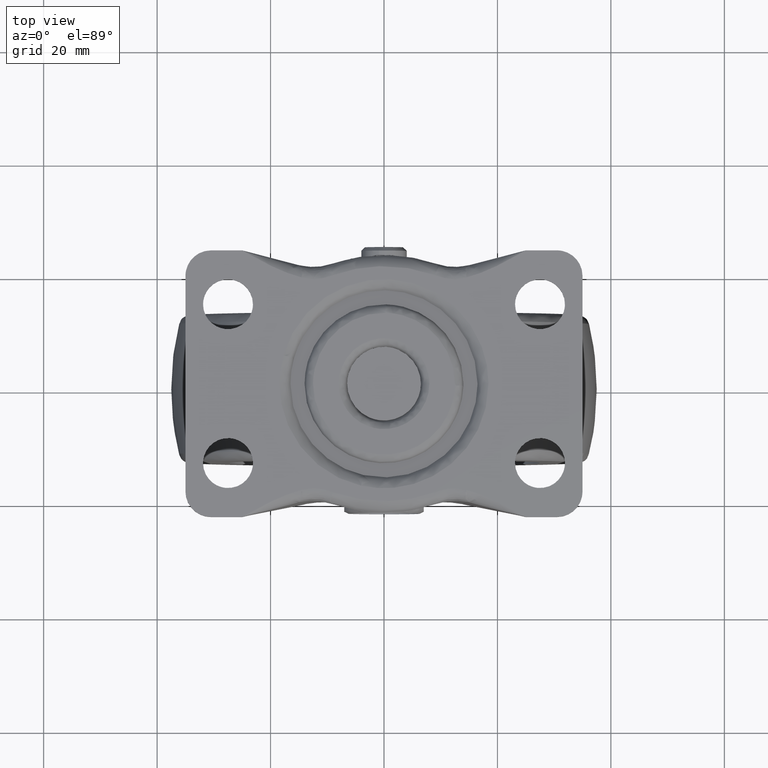
[diagram: clean part render]
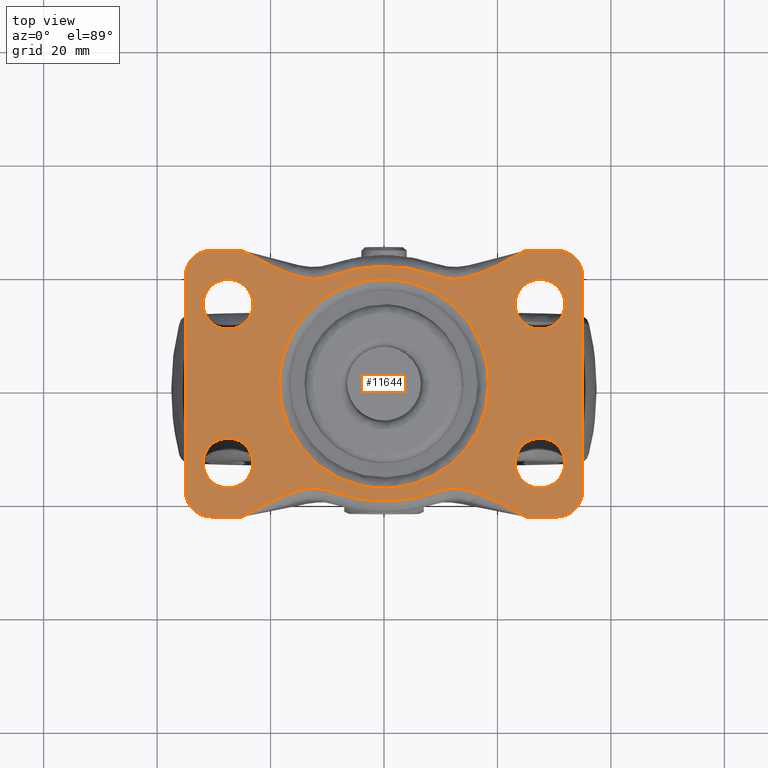
[diagram: same view with one face highlighted and labeled with its STEP entity id]
A machine part, top view. The second image highlights one B-rep face of the part: STEP entity #11644.
In plain terms, the highlighted face is a freeform B-spline surface patch.
Its self-contained STEP definition (entity closure, byte-faithful):
#2124=CARTESIAN_POINT('',(-28.019344770543889,9.630757286522787,-1.064786E-017));
#2125=VERTEX_POINT('',#2124);
#2131=CARTESIAN_POINT('',(-23.099999900000000,14.0,0.0));
#2132=VERTEX_POINT('',#2131);
#2133=CARTESIAN_POINT('',(-28.019344770543892,9.630757286522787,-1.064786E-017));
#2134=CARTESIAN_POINT('',(-27.760583164468510,9.599999900000000,0.0));
#2135=CARTESIAN_POINT('',(-27.500000000000000,9.599999900000000,0.0));
#2136=CARTESIAN_POINT('',(-23.099999900000004,9.599999900000000,0.0));
#2137=CARTESIAN_POINT('',(-23.099999900000000,14.0,0.0));
#2145=(BOUNDED_CURVE()B_SPLINE_CURVE(2,(#2133,#2134,#2135,#2136,#2137),.UNSPECIFIED.,.F.,.U.)B_SPLINE_CURVE_WITH_KNOTS((3,2,3),(0.229562700713585,0.250000000000000,0.500000000000000),.UNSPECIFIED.)CURVE()GEOMETRIC_REPRESENTATION_ITEM()RATIONAL_B_SPLINE_CURVE((0.956027199505632,0.976056214512593,1.0,0.707106781186547,1.0))REPRESENTATION_ITEM(''));
#2146=EDGE_CURVE('',#2125,#2132,#2145,.T.);
#2148=CARTESIAN_POINT('',(-27.231386419733880,18.391793212856982,-1.040834E-017));
#2149=VERTEX_POINT('',#2148);
#2150=CARTESIAN_POINT('',(-23.099999900000000,14.0,0.0));
#2151=CARTESIAN_POINT('',(-23.099999900000000,18.139106788063089,0.0));
#2152=CARTESIAN_POINT('',(-27.231386419733877,18.391793212856985,-1.040834E-017));
#2160=(BOUNDED_CURVE()B_SPLINE_CURVE(2,(#2150,#2151,#2152),.UNSPECIFIED.,.F.,.U.)B_SPLINE_CURVE_WITH_KNOTS((3,3),(0.500000000000000,0.739332962225633),.UNSPECIFIED.)CURVE()GEOMETRIC_REPRESENTATION_ITEM()RATIONAL_B_SPLINE_CURVE((1.0,0.719603993302303,0.976072041638193))REPRESENTATION_ITEM(''));
#2161=EDGE_CURVE('',#2132,#2149,#2160,.T.);
#2235=CARTESIAN_POINT('',(-31.900000100000000,14.0,0.0));
#2236=VERTEX_POINT('',#2235);
#2237=CARTESIAN_POINT('',(-27.231386419733880,18.391793212856975,-1.040834E-017));
#2238=CARTESIAN_POINT('',(-27.365567838222457,18.400000100000000,0.0));
#2239=CARTESIAN_POINT('',(-27.500000000000000,18.400000100000000,0.0));
#2240=CARTESIAN_POINT('',(-31.900000099999996,18.400000100000000,0.0));
#2241=CARTESIAN_POINT('',(-31.900000100000000,14.0,0.0));
#2249=(BOUNDED_CURVE()B_SPLINE_CURVE(2,(#2237,#2238,#2239,#2240,#2241),.UNSPECIFIED.,.F.,.U.)B_SPLINE_CURVE_WITH_KNOTS((3,2,3),(0.739332962225632,0.750000000000000,1.0),.UNSPECIFIED.)CURVE()GEOMETRIC_REPRESENTATION_ITEM()RATIONAL_B_SPLINE_CURVE((0.976072041638191,0.987502787884243,1.0,0.707106781186547,1.0))REPRESENTATION_ITEM(''));
#2250=EDGE_CURVE('',#2149,#2236,#2249,.T.);
#2252=CARTESIAN_POINT('',(-31.900000100000000,14.0,0.0));
#2253=CARTESIAN_POINT('',(-31.900000099999996,10.092026706370342,0.0));
#2254=CARTESIAN_POINT('',(-28.019344770543892,9.630757286522789,-1.064786E-017));
#2262=(BOUNDED_CURVE()B_SPLINE_CURVE(2,(#2252,#2253,#2254),.UNSPECIFIED.,.F.,.U.)B_SPLINE_CURVE_WITH_KNOTS((3,3),(0.0,0.229562700713586),.UNSPECIFIED.)CURVE()GEOMETRIC_REPRESENTATION_ITEM()RATIONAL_B_SPLINE_CURVE((1.0,0.731050566673955,0.956027199505632))REPRESENTATION_ITEM(''));
#2263=EDGE_CURVE('',#2236,#2125,#2262,.T.);
#2310=CARTESIAN_POINT('',(26.980655229456111,9.630757286522787,-1.064786E-017));
#2311=VERTEX_POINT('',#2310);
#2317=CARTESIAN_POINT('',(31.900000100000000,14.0,0.0));
#2318=VERTEX_POINT('',#2317);
#2319=CARTESIAN_POINT('',(26.980655229456115,9.630757286522789,-1.064786E-017));
#2320=CARTESIAN_POINT('',(27.239416835531486,9.599999899999999,0.0));
#2321=CARTESIAN_POINT('',(27.500000000000000,9.599999900000000,0.0));
#2322=CARTESIAN_POINT('',(31.900000099999996,9.599999900000000,0.0));
#2323=CARTESIAN_POINT('',(31.900000100000000,14.0,0.0));
#2331=(BOUNDED_CURVE()B_SPLINE_CURVE(2,(#2319,#2320,#2321,#2322,#2323),.UNSPECIFIED.,.F.,.U.)B_SPLINE_CURVE_WITH_KNOTS((3,2,3),(0.229562700713586,0.250000000000000,0.500000000000000),.UNSPECIFIED.)CURVE()GEOMETRIC_REPRESENTATION_ITEM()RATIONAL_B_SPLINE_CURVE((0.956027199505632,0.976056214512593,1.0,0.707106781186547,1.0))REPRESENTATION_ITEM(''));
#2332=EDGE_CURVE('',#2311,#2318,#2331,.T.);
#2334=CARTESIAN_POINT('',(27.768613580266120,18.391793212856982,-1.040834E-017));
#2335=VERTEX_POINT('',#2334);
#2336=CARTESIAN_POINT('',(31.900000100000000,14.0,0.0));
#2337=CARTESIAN_POINT('',(31.900000100000003,18.139106788063039,0.0));
#2338=CARTESIAN_POINT('',(27.768613580266123,18.391793212856982,-1.040834E-017));
#2346=(BOUNDED_CURVE()B_SPLINE_CURVE(2,(#2336,#2337,#2338),.UNSPECIFIED.,.F.,.U.)B_SPLINE_CURVE_WITH_KNOTS((3,3),(0.500000000000000,0.739332962225631),.UNSPECIFIED.)CURVE()GEOMETRIC_REPRESENTATION_ITEM()RATIONAL_B_SPLINE_CURVE((1.0,0.719603993302306,0.976072041638188))REPRESENTATION_ITEM(''));
#2347=EDGE_CURVE('',#2318,#2335,#2346,.T.);
#2421=CARTESIAN_POINT('',(23.099999900000000,14.0,0.0));
#2422=VERTEX_POINT('',#2421);
#2423=CARTESIAN_POINT('',(27.768613580266127,18.391793212856982,-1.040834E-017));
#2424=CARTESIAN_POINT('',(27.634432161777553,18.400000100000003,0.0));
#2425=CARTESIAN_POINT('',(27.500000000000000,18.400000100000000,0.0));
#2426=CARTESIAN_POINT('',(23.099999900000004,18.400000100000000,0.0));
#2427=CARTESIAN_POINT('',(23.099999900000000,14.0,0.0));
#2435=(BOUNDED_CURVE()B_SPLINE_CURVE(2,(#2423,#2424,#2425,#2426,#2427),.UNSPECIFIED.,.F.,.U.)B_SPLINE_CURVE_WITH_KNOTS((3,2,3),(0.739332962225632,0.750000000000000,1.0),.UNSPECIFIED.)CURVE()GEOMETRIC_REPRESENTATION_ITEM()RATIONAL_B_SPLINE_CURVE((0.976072041638191,0.987502787884243,1.0,0.707106781186547,1.0))REPRESENTATION_ITEM(''));
#2436=EDGE_CURVE('',#2335,#2422,#2435,.T.);
#2438=CARTESIAN_POINT('',(23.099999900000000,14.0,0.0));
#2439=CARTESIAN_POINT('',(23.099999900000011,10.092026706370346,0.0));
#2440=CARTESIAN_POINT('',(26.980655229456111,9.630757286522787,-1.064786E-017));
#2448=(BOUNDED_CURVE()B_SPLINE_CURVE(2,(#2438,#2439,#2440),.UNSPECIFIED.,.F.,.U.)B_SPLINE_CURVE_WITH_KNOTS((3,3),(0.0,0.229562700713585),.UNSPECIFIED.)CURVE()GEOMETRIC_REPRESENTATION_ITEM()RATIONAL_B_SPLINE_CURVE((1.0,0.731050566673955,0.956027199505632))REPRESENTATION_ITEM(''));
#2449=EDGE_CURVE('',#2422,#2311,#2448,.T.);
#2496=CARTESIAN_POINT('',(26.980655229456119,-18.369242713477210,-1.277743E-016));
#2497=VERTEX_POINT('',#2496);
#2503=CARTESIAN_POINT('',(31.900000100000000,-14.0,0.0));
#2504=VERTEX_POINT('',#2503);
#2505=CARTESIAN_POINT('',(26.980655229456115,-18.369242713477213,-1.277743E-016));
#2506=CARTESIAN_POINT('',(27.239416835531497,-18.400000100000003,0.0));
#2507=CARTESIAN_POINT('',(27.500000000000000,-18.400000100000000,0.0));
#2508=CARTESIAN_POINT('',(31.900000099999996,-18.400000100000000,0.0));
#2509=CARTESIAN_POINT('',(31.900000100000000,-14.0,0.0));
#2517=(BOUNDED_CURVE()B_SPLINE_CURVE(2,(#2505,#2506,#2507,#2508,#2509),.UNSPECIFIED.,.F.,.U.)B_SPLINE_CURVE_WITH_KNOTS((3,2,3),(0.229562700713586,0.250000000000000,0.500000000000000),.UNSPECIFIED.)CURVE()GEOMETRIC_REPRESENTATION_ITEM()RATIONAL_B_SPLINE_CURVE((0.956027199505632,0.976056214512593,1.0,0.707106781186547,1.0))REPRESENTATION_ITEM(''));
#2518=EDGE_CURVE('',#2497,#2504,#2517,.T.);
#2520=CARTESIAN_POINT('',(27.768613580266120,-9.608206787143022,-1.040834E-017));
#2521=VERTEX_POINT('',#2520);
#2522=CARTESIAN_POINT('',(31.900000100000000,-14.0,0.0));
#2523=CARTESIAN_POINT('',(31.900000100000003,-9.860893211936967,0.0));
#2524=CARTESIAN_POINT('',(27.768613580266123,-9.608206787143022,-1.040834E-017));
#2532=(BOUNDED_CURVE()B_SPLINE_CURVE(2,(#2522,#2523,#2524),.UNSPECIFIED.,.F.,.U.)B_SPLINE_CURVE_WITH_KNOTS((3,3),(0.500000000000000,0.739332962225631),.UNSPECIFIED.)CURVE()GEOMETRIC_REPRESENTATION_ITEM()RATIONAL_B_SPLINE_CURVE((1.0,0.719603993302306,0.976072041638188))REPRESENTATION_ITEM(''));
#2533=EDGE_CURVE('',#2504,#2521,#2532,.T.);
#2607=CARTESIAN_POINT('',(23.099999900000000,-14.0,0.0));
#2608=VERTEX_POINT('',#2607);
#2609=CARTESIAN_POINT('',(27.768613580266127,-9.608206787143022,-1.040834E-017));
#2610=CARTESIAN_POINT('',(27.634432161777553,-9.599999900000002,0.0));
#2611=CARTESIAN_POINT('',(27.500000000000000,-9.599999900000000,0.0));
#2612=CARTESIAN_POINT('',(23.099999900000004,-9.599999900000000,0.0));
#2613=CARTESIAN_POINT('',(23.099999900000000,-14.0,0.0));
#2621=(BOUNDED_CURVE()B_SPLINE_CURVE(2,(#2609,#2610,#2611,#2612,#2613),.UNSPECIFIED.,.F.,.U.)B_SPLINE_CURVE_WITH_KNOTS((3,2,3),(0.739332962225632,0.750000000000000,1.0),.UNSPECIFIED.)CURVE()GEOMETRIC_REPRESENTATION_ITEM()RATIONAL_B_SPLINE_CURVE((0.976072041638191,0.987502787884243,1.0,0.707106781186547,1.0))REPRESENTATION_ITEM(''));
#2622=EDGE_CURVE('',#2521,#2608,#2621,.T.);
#2624=CARTESIAN_POINT('',(23.099999900000000,-14.0,0.0));
#2625=CARTESIAN_POINT('',(23.099999899999997,-17.907973293629659,0.0));
#2626=CARTESIAN_POINT('',(26.980655229456119,-18.369242713477213,-1.277743E-016));
#2634=(BOUNDED_CURVE()B_SPLINE_CURVE(2,(#2624,#2625,#2626),.UNSPECIFIED.,.F.,.U.)B_SPLINE_CURVE_WITH_KNOTS((3,3),(0.0,0.229562700713585),.UNSPECIFIED.)CURVE()GEOMETRIC_REPRESENTATION_ITEM()RATIONAL_B_SPLINE_CURVE((1.0,0.731050566673955,0.956027199505632))REPRESENTATION_ITEM(''));
#2635=EDGE_CURVE('',#2608,#2497,#2634,.T.);
#2682=CARTESIAN_POINT('',(-28.019344770543889,-18.369242713477220,-1.277743E-016));
#2683=VERTEX_POINT('',#2682);
#2689=CARTESIAN_POINT('',(-23.099999900000000,-14.0,0.0));
#2690=VERTEX_POINT('',#2689);
#2691=CARTESIAN_POINT('',(-28.019344770543892,-18.369242713477217,-1.277743E-016));
#2692=CARTESIAN_POINT('',(-27.760583164468507,-18.400000099999996,0.0));
#2693=CARTESIAN_POINT('',(-27.500000000000000,-18.400000100000000,0.0));
#2694=CARTESIAN_POINT('',(-23.099999900000004,-18.400000100000000,0.0));
#2695=CARTESIAN_POINT('',(-23.099999900000000,-14.0,0.0));
#2703=(BOUNDED_CURVE()B_SPLINE_CURVE(2,(#2691,#2692,#2693,#2694,#2695),.UNSPECIFIED.,.F.,.U.)B_SPLINE_CURVE_WITH_KNOTS((3,2,3),(0.229562700713585,0.250000000000000,0.500000000000000),.UNSPECIFIED.)CURVE()GEOMETRIC_REPRESENTATION_ITEM()RATIONAL_B_SPLINE_CURVE((0.956027199505632,0.976056214512593,1.0,0.707106781186547,1.0))REPRESENTATION_ITEM(''));
#2704=EDGE_CURVE('',#2683,#2690,#2703,.T.);
#2706=CARTESIAN_POINT('',(-27.231386419733880,-9.608206787143022,-1.040834E-017));
#2707=VERTEX_POINT('',#2706);
#2708=CARTESIAN_POINT('',(-23.099999900000000,-14.0,0.0));
#2709=CARTESIAN_POINT('',(-23.099999900000000,-9.860893211936913,0.0));
#2710=CARTESIAN_POINT('',(-27.231386419733877,-9.608206787143022,-1.040834E-017));
#2718=(BOUNDED_CURVE()B_SPLINE_CURVE(2,(#2708,#2709,#2710),.UNSPECIFIED.,.F.,.U.)B_SPLINE_CURVE_WITH_KNOTS((3,3),(0.500000000000000,0.739332962225633),.UNSPECIFIED.)CURVE()GEOMETRIC_REPRESENTATION_ITEM()RATIONAL_B_SPLINE_CURVE((1.0,0.719603993302303,0.976072041638193))REPRESENTATION_ITEM(''));
#2719=EDGE_CURVE('',#2690,#2707,#2718,.T.);
#2793=CARTESIAN_POINT('',(-31.900000100000000,-14.0,0.0));
#2794=VERTEX_POINT('',#2793);
#2795=CARTESIAN_POINT('',(-27.231386419733880,-9.608206787143022,-1.040834E-017));
#2796=CARTESIAN_POINT('',(-27.365567838222457,-9.599999899999999,0.0));
#2797=CARTESIAN_POINT('',(-27.500000000000000,-9.599999900000000,0.0));
#2798=CARTESIAN_POINT('',(-31.900000099999996,-9.599999900000000,0.0));
#2799=CARTESIAN_POINT('',(-31.900000100000000,-14.0,0.0));
#2807=(BOUNDED_CURVE()B_SPLINE_CURVE(2,(#2795,#2796,#2797,#2798,#2799),.UNSPECIFIED.,.F.,.U.)B_SPLINE_CURVE_WITH_KNOTS((3,2,3),(0.739332962225632,0.750000000000000,1.0),.UNSPECIFIED.)CURVE()GEOMETRIC_REPRESENTATION_ITEM()RATIONAL_B_SPLINE_CURVE((0.976072041638191,0.987502787884243,1.0,0.707106781186547,1.0))REPRESENTATION_ITEM(''));
#2808=EDGE_CURVE('',#2707,#2794,#2807,.T.);
#2810=CARTESIAN_POINT('',(-31.900000100000000,-14.0,0.0));
#2811=CARTESIAN_POINT('',(-31.900000099999993,-17.907973293629659,0.0));
#2812=CARTESIAN_POINT('',(-28.019344770543889,-18.369242713477213,-1.277743E-016));
#2820=(BOUNDED_CURVE()B_SPLINE_CURVE(2,(#2810,#2811,#2812),.UNSPECIFIED.,.F.,.U.)B_SPLINE_CURVE_WITH_KNOTS((3,3),(0.0,0.229562700713585),.UNSPECIFIED.)CURVE()GEOMETRIC_REPRESENTATION_ITEM()RATIONAL_B_SPLINE_CURVE((1.0,0.731050566673955,0.956027199505632))REPRESENTATION_ITEM(''));
#2821=EDGE_CURVE('',#2794,#2683,#2820,.T.);
#3425=CARTESIAN_POINT('',(-4.009652861008846,-17.995191274676611,-4.122227E-016));
#3426=VERTEX_POINT('',#3425);
#3440=CARTESIAN_POINT('',(18.436491673103749,0.0,0.0));
#3441=VERTEX_POINT('',#3440);
#3442=CARTESIAN_POINT('',(18.436491673103749,0.0,0.0));
#3443=CARTESIAN_POINT('',(18.436491673103749,-18.436491673103749,0.0));
#3444=CARTESIAN_POINT('',(0.0,-18.436491673103749,0.0));
#3445=CARTESIAN_POINT('',(-2.029111081779337,-18.436491673103749,0.0));
#3446=CARTESIAN_POINT('',(-4.009652861008846,-17.995191274676611,-4.122227E-016));
#3454=(BOUNDED_CURVE()B_SPLINE_CURVE(2,(#3442,#3443,#3444,#3445,#3446),.UNSPECIFIED.,.F.,.U.)B_SPLINE_CURVE_WITH_KNOTS((3,2,3),(0.0,0.250000000000000,0.287215332194024),.UNSPECIFIED.)CURVE()GEOMETRIC_REPRESENTATION_ITEM()RATIONAL_B_SPLINE_CURVE((1.0,0.707106781186548,1.0,0.956399526257921,0.925779901428869))REPRESENTATION_ITEM(''));
#3455=EDGE_CURVE('',#3441,#3426,#3454,.T.);
#3457=CARTESIAN_POINT('',(-17.736415151351078,5.032276085260511,-4.029500E-016));
#3458=VERTEX_POINT('',#3457);
#3459=CARTESIAN_POINT('',(-17.736415151351078,5.032276085260511,-4.029500E-016));
#3460=CARTESIAN_POINT('',(-13.933295249298917,18.436491673103749,0.0));
#3461=CARTESIAN_POINT('',(0.0,18.436491673103749,0.0));
#3462=CARTESIAN_POINT('',(18.436491673103749,18.436491673103749,0.0));
#3463=CARTESIAN_POINT('',(18.436491673103749,0.0,0.0));
#3471=(BOUNDED_CURVE()B_SPLINE_CURVE(2,(#3459,#3460,#3461,#3462,#3463),.UNSPECIFIED.,.F.,.U.)B_SPLINE_CURVE_WITH_KNOTS((3,2,3),(0.546505535791729,0.750000000000000,1.0),.UNSPECIFIED.)CURVE()GEOMETRIC_REPRESENTATION_ITEM()RATIONAL_B_SPLINE_CURVE((0.911301444591967,0.761591405469283,1.0,0.707106781186548,1.0))REPRESENTATION_ITEM(''));
#3472=EDGE_CURVE('',#3458,#3441,#3471,.T.);
#3559=CARTESIAN_POINT('',(-18.436491673103749,0.0,0.0));
#3560=VERTEX_POINT('',#3559);
#3561=CARTESIAN_POINT('',(-18.436491673103749,0.0,0.0));
#3562=CARTESIAN_POINT('',(-18.436491673103749,2.564834410830510,0.0));
#3563=CARTESIAN_POINT('',(-17.736415151351085,5.032276085260511,-4.029500E-016));
#3571=(BOUNDED_CURVE()B_SPLINE_CURVE(2,(#3561,#3562,#3563),.UNSPECIFIED.,.F.,.U.)B_SPLINE_CURVE_WITH_KNOTS((3,3),(0.500000000000000,0.546505535791730),.UNSPECIFIED.)CURVE()GEOMETRIC_REPRESENTATION_ITEM()RATIONAL_B_SPLINE_CURVE((1.0,0.945515375717264,0.911301444591966))REPRESENTATION_ITEM(''));
#3572=EDGE_CURVE('',#3560,#3458,#3571,.T.);
#3574=CARTESIAN_POINT('',(-4.009652861008846,-17.995191274676618,-4.122227E-016));
#3575=CARTESIAN_POINT('',(-18.436491673103749,-14.780631641900770,0.0));
#3576=CARTESIAN_POINT('',(-18.436491673103749,0.0,0.0));
#3584=(BOUNDED_CURVE()B_SPLINE_CURVE(2,(#3574,#3575,#3576),.UNSPECIFIED.,.F.,.U.)B_SPLINE_CURVE_WITH_KNOTS((3,3),(0.287215332194024,0.500000000000000),.UNSPECIFIED.)CURVE()GEOMETRIC_REPRESENTATION_ITEM()RATIONAL_B_SPLINE_CURVE((0.925779901428869,0.750707254928626,1.0))REPRESENTATION_ITEM(''));
#3585=EDGE_CURVE('',#3426,#3560,#3584,.T.);
#6432=CARTESIAN_POINT('',(12.425873893798560,18.386728300295001,0.0));
#6433=VERTEX_POINT('',#6432);
#6516=CARTESIAN_POINT('',(-12.425935329693001,18.386723918481749,0.0));
#6517=VERTEX_POINT('',#6516);
#7459=CARTESIAN_POINT('',(12.426041739872140,-18.386716329664701,0.0));
#7460=VERTEX_POINT('',#7459);
#7979=CARTESIAN_POINT('',(-12.426035422045000,-18.386716780205699,0.0));
#7980=VERTEX_POINT('',#7979);
#8060=CARTESIAN_POINT('',(-25.000066084124899,-23.500000000000000,0.0));
#8061=VERTEX_POINT('',#8060);
#8071=CARTESIAN_POINT('',(-14.550791288739941,-18.735900550421150,0.0));
#8072=VERTEX_POINT('',#8071);
#8086=CARTESIAN_POINT('',(-25.000066084124949,-23.500000000000000,0.0));
#8087=CARTESIAN_POINT('',(-21.600322110684498,-21.589221928391950,0.0));
#8088=CARTESIAN_POINT('',(-18.200578137244101,-19.678443856783851,0.0));
#8089=CARTESIAN_POINT('',(-14.550791288739941,-18.735900550421150,0.0));
#8090=QUASI_UNIFORM_CURVE('',3,(#8086,#8087,#8088,#8089),.UNSPECIFIED.,.F.,.U.);
#8091=EDGE_CURVE('',#8061,#8072,#8090,.T.);
#8115=CARTESIAN_POINT('',(-14.550791288739941,-18.735900550421160,0.0));
#8116=CARTESIAN_POINT('',(-13.504141001657407,-18.465607170796389,0.0));
#8117=CARTESIAN_POINT('',(-12.426035422045000,-18.386716780205720,0.0));
#8125=(BOUNDED_CURVE()B_SPLINE_CURVE(2,(#8115,#8116,#8117),.UNSPECIFIED.,.F.,.U.)CURVE()GEOMETRIC_REPRESENTATION_ITEM()QUASI_UNIFORM_CURVE()RATIONAL_B_SPLINE_CURVE((1.0,0.995967113748934,1.0))REPRESENTATION_ITEM(''));
#8126=EDGE_CURVE('',#8072,#7980,#8125,.T.);
#8151=CARTESIAN_POINT('',(-8.992189144699720,-19.121568176244899,0.0));
#8152=VERTEX_POINT('',#8151);
#8153=CARTESIAN_POINT('',(-12.426035422045000,-18.386716780205699,0.0));
#8154=CARTESIAN_POINT('',(-11.836514471867670,-18.428757232329080,0.0));
#8155=CARTESIAN_POINT('',(-11.255712843168030,-18.511541717543409,0.0));
#8156=CARTESIAN_POINT('',(-10.111077379259500,-18.756398547840082,0.0));
#8157=CARTESIAN_POINT('',(-9.547242853096810,-18.918467664202769,0.0));
#8158=CARTESIAN_POINT('',(-8.992189144699720,-19.121568176244899,0.0));
#8159=B_SPLINE_CURVE_WITH_KNOTS('',3,(#8153,#8154,#8155,#8156,#8157,#8158),.UNSPECIFIED.,.F.,.U.,(4,2,4),(0.0,0.500000000000000,1.0),.UNSPECIFIED.);
#8160=EDGE_CURVE('',#7980,#8152,#8159,.T.);
#8236=CARTESIAN_POINT('',(8.992189144699720,-19.121568176244899,0.0));
#8237=VERTEX_POINT('',#8236);
#8251=CARTESIAN_POINT('',(-8.992189144699740,-19.121568176244899,-1.734723E-015));
#8252=CARTESIAN_POINT('',(-2.496608E-014,-22.411913222208661,-1.734723E-015));
#8253=CARTESIAN_POINT('',(8.992189144699704,-19.121568176244910,-1.734723E-015));
#8261=(BOUNDED_CURVE()B_SPLINE_CURVE(2,(#8251,#8252,#8253),.UNSPECIFIED.,.F.,.U.)CURVE()GEOMETRIC_REPRESENTATION_ITEM()QUASI_UNIFORM_CURVE()RATIONAL_B_SPLINE_CURVE((1.0,0.939507555635713,1.0))REPRESENTATION_ITEM(''));
#8262=EDGE_CURVE('',#8152,#8237,#8261,.T.);
#8290=CARTESIAN_POINT('',(8.992189144699720,-19.121568176244899,0.0));
#8291=CARTESIAN_POINT('',(9.547243864133900,-18.918467294252721,0.0));
#8292=CARTESIAN_POINT('',(10.111079423160760,-18.756397960270409,0.0));
#8293=CARTESIAN_POINT('',(11.255716993064690,-18.511540980156060,0.0));
#8294=CARTESIAN_POINT('',(11.836519694900041,-18.428756562768491,0.0));
#8295=CARTESIAN_POINT('',(12.426041739872140,-18.386716329664701,0.0));
#8296=B_SPLINE_CURVE_WITH_KNOTS('',3,(#8290,#8291,#8292,#8293,#8294,#8295),.UNSPECIFIED.,.F.,.U.,(4,2,4),(0.0,0.500000000000000,1.0),.UNSPECIFIED.);
#8297=EDGE_CURVE('',#8237,#7460,#8296,.T.);
#8319=CARTESIAN_POINT('',(14.550805170141601,-18.735900913649349,0.0));
#8320=VERTEX_POINT('',#8319);
#8321=CARTESIAN_POINT('',(12.426041739872129,-18.386716329664711,0.0));
#8322=CARTESIAN_POINT('',(13.504151193853122,-18.465606446148517,0.0));
#8323=CARTESIAN_POINT('',(14.550805170141590,-18.735900913649370,0.0));
#8331=(BOUNDED_CURVE()B_SPLINE_CURVE(2,(#8321,#8322,#8323),.UNSPECIFIED.,.F.,.U.)CURVE()GEOMETRIC_REPRESENTATION_ITEM()QUASI_UNIFORM_CURVE()RATIONAL_B_SPLINE_CURVE((1.0,0.995967085239979,1.0))REPRESENTATION_ITEM(''));
#8332=EDGE_CURVE('',#7460,#8320,#8331,.T.);
#8390=CARTESIAN_POINT('',(25.000073084096002,-23.500000000000000,0.0));
#8391=VERTEX_POINT('',#8390);
#8399=CARTESIAN_POINT('',(14.550805170141601,-18.735900913649349,0.0));
#8400=CARTESIAN_POINT('',(18.200589802975500,-19.678444119115351,0.0));
#8401=CARTESIAN_POINT('',(21.600331443535751,-21.589222059557699,0.0));
#8402=CARTESIAN_POINT('',(25.000073084096002,-23.500000000000000,0.0));
#8403=QUASI_UNIFORM_CURVE('',3,(#8399,#8400,#8401,#8402),.UNSPECIFIED.,.F.,.U.);
#8404=EDGE_CURVE('',#8320,#8391,#8403,.T.);
#8429=CARTESIAN_POINT('',(-14.550591753851521,18.735900060459400,0.0));
#8430=VERTEX_POINT('',#8429);
#8446=CARTESIAN_POINT('',(-24.999875831672799,23.500000000000000,0.0));
#8447=VERTEX_POINT('',#8446);
#8455=CARTESIAN_POINT('',(-14.550591753851521,18.735900060459400,0.0));
#8456=CARTESIAN_POINT('',(-18.200381591097351,19.678443502922551,0.0));
#8457=CARTESIAN_POINT('',(-21.600128711385100,21.589221751461299,0.0));
#8458=CARTESIAN_POINT('',(-24.999875831672799,23.500000000000000,0.0));
#8459=QUASI_UNIFORM_CURVE('',3,(#8455,#8456,#8457,#8458),.UNSPECIFIED.,.F.,.U.);
#8460=EDGE_CURVE('',#8430,#8447,#8459,.T.);
#8482=CARTESIAN_POINT('',(-12.425935329692990,18.386723918481799,0.0));
#8483=CARTESIAN_POINT('',(-13.503990112818101,18.465619425788269,0.0));
#8484=CARTESIAN_POINT('',(-14.550591753851510,18.735900060459439,0.0));
#8492=(BOUNDED_CURVE()B_SPLINE_CURVE(2,(#8482,#8483,#8484),.UNSPECIFIED.,.F.,.U.)CURVE()GEOMETRIC_REPRESENTATION_ITEM()QUASI_UNIFORM_CURVE()RATIONAL_B_SPLINE_CURVE((1.0,0.995967486693525,1.0))REPRESENTATION_ITEM(''));
#8493=EDGE_CURVE('',#6517,#8430,#8492,.T.);
#8520=CARTESIAN_POINT('',(-8.992189144699720,19.121568176244899,0.0));
#8521=VERTEX_POINT('',#8520);
#8537=CARTESIAN_POINT('',(-8.992189144699720,19.121568176244899,0.0));
#8538=CARTESIAN_POINT('',(-9.547226835398245,18.918473525262229,0.0));
#8539=CARTESIAN_POINT('',(-10.111044998057510,18.756407856651158,0.0));
#8540=CARTESIAN_POINT('',(-11.255647097008531,18.511553400034110,0.0));
#8541=CARTESIAN_POINT('',(-11.836431724183511,18.428767840355221,0.0));
#8542=CARTESIAN_POINT('',(-12.425935329693001,18.386723918481749,0.0));
#8543=B_SPLINE_CURVE_WITH_KNOTS('',3,(#8537,#8538,#8539,#8540,#8541,#8542),.UNSPECIFIED.,.F.,.U.,(4,2,4),(0.0,0.500000000000000,1.0),.UNSPECIFIED.);
#8544=EDGE_CURVE('',#8521,#6517,#8543,.T.);
#8603=CARTESIAN_POINT('',(8.992189144699701,19.121568176244899,0.0));
#8604=VERTEX_POINT('',#8603);
#8605=CARTESIAN_POINT('',(8.992189144699740,19.121568176244899,-1.734723E-015));
#8606=CARTESIAN_POINT('',(2.360618E-014,22.411913222208661,-1.734723E-015));
#8607=CARTESIAN_POINT('',(-8.992189144699704,19.121568176244910,-1.734723E-015));
#8615=(BOUNDED_CURVE()B_SPLINE_CURVE(2,(#8605,#8606,#8607),.UNSPECIFIED.,.F.,.U.)CURVE()GEOMETRIC_REPRESENTATION_ITEM()QUASI_UNIFORM_CURVE()RATIONAL_B_SPLINE_CURVE((1.0,0.939507555635713,1.0))REPRESENTATION_ITEM(''));
#8616=EDGE_CURVE('',#8604,#8521,#8615,.T.);
#8656=CARTESIAN_POINT('',(12.425873893798560,18.386728300295001,0.0));
#8657=CARTESIAN_POINT('',(11.836380934313439,18.428774351740191,0.0));
#8658=CARTESIAN_POINT('',(11.255606742542460,18.511560570820180,0.0));
#8659=CARTESIAN_POINT('',(10.111025122738621,18.756413570359459,0.0));
#8660=CARTESIAN_POINT('',(9.547217003865859,18.918477122732568,0.0));
#8661=CARTESIAN_POINT('',(8.992189144699701,19.121568176244899,0.0));
#8662=B_SPLINE_CURVE_WITH_KNOTS('',3,(#8656,#8657,#8658,#8659,#8660,#8661),.UNSPECIFIED.,.F.,.U.,(4,2,4),(0.0,0.500000000000000,1.0),.UNSPECIFIED.);
#8663=EDGE_CURVE('',#6433,#8604,#8662,.T.);
#8688=CARTESIAN_POINT('',(14.550467069803799,18.735899188714800,0.0));
#8689=VERTEX_POINT('',#8688);
#8719=CARTESIAN_POINT('',(14.550467069803799,18.735899188714811,0.0));
#8720=CARTESIAN_POINT('',(13.503896350420135,18.465626863774986,0.0));
#8721=CARTESIAN_POINT('',(12.425873893798560,18.386728300295001,0.0));
#8729=(BOUNDED_CURVE()B_SPLINE_CURVE(2,(#8719,#8720,#8721),.UNSPECIFIED.,.F.,.U.)CURVE()GEOMETRIC_REPRESENTATION_ITEM()QUASI_UNIFORM_CURVE()RATIONAL_B_SPLINE_CURVE((1.0,0.995967724131870,1.0))REPRESENTATION_ITEM(''));
#8730=EDGE_CURVE('',#8689,#6433,#8729,.T.);
#8755=CARTESIAN_POINT('',(24.999767663066500,23.500000000000000,0.0));
#8756=VERTEX_POINT('',#8755);
#8768=CARTESIAN_POINT('',(24.999767663066550,23.500000000000000,0.0));
#8769=CARTESIAN_POINT('',(21.600014943863901,21.589221436664602,0.0));
#8770=CARTESIAN_POINT('',(18.200262224661302,19.678442873329200,0.0));
#8771=CARTESIAN_POINT('',(14.550467069803799,18.735899188714800,0.0));
#8772=QUASI_UNIFORM_CURVE('',3,(#8768,#8769,#8770,#8771),.UNSPECIFIED.,.F.,.U.);
#8773=EDGE_CURVE('',#8756,#8689,#8772,.T.);
#10383=CARTESIAN_POINT('',(-30.500000000000000,23.500000000000000,0.0));
#10384=VERTEX_POINT('',#10383);
#10385=CARTESIAN_POINT('',(-35.0,19.0,0.0));
#10386=VERTEX_POINT('',#10385);
#10387=CARTESIAN_POINT('',(-30.500000000000000,23.500000000000000,0.0));
#10388=CARTESIAN_POINT('',(-35.0,23.500000000000007,0.0));
#10389=CARTESIAN_POINT('',(-34.999999999999993,19.0,0.0));
#10397=(BOUNDED_CURVE()B_SPLINE_CURVE(2,(#10387,#10388,#10389),.UNSPECIFIED.,.F.,.U.)CURVE()GEOMETRIC_REPRESENTATION_ITEM()QUASI_UNIFORM_CURVE()RATIONAL_B_SPLINE_CURVE((1.0,0.707106781186547,1.0))REPRESENTATION_ITEM(''));
#10398=EDGE_CURVE('',#10384,#10386,#10397,.T.);
#10441=CARTESIAN_POINT('',(-30.500000000000000,23.500000000000000,0.0));
#10442=CARTESIAN_POINT('',(-24.999875831672799,23.500000000000000,0.0));
#10443=QUASI_UNIFORM_CURVE('',1,(#10441,#10442),.UNSPECIFIED.,.F.,.U.);
#10444=EDGE_CURVE('',#10384,#8447,#10443,.T.);
#10460=CARTESIAN_POINT('',(30.500000000000000,23.500000000000000,0.0));
#10461=VERTEX_POINT('',#10460);
#10462=CARTESIAN_POINT('',(24.999767663066500,23.500000000000000,0.0));
#10463=CARTESIAN_POINT('',(30.500000000000000,23.500000000000000,0.0));
#10464=QUASI_UNIFORM_CURVE('',1,(#10462,#10463),.UNSPECIFIED.,.F.,.U.);
#10465=EDGE_CURVE('',#8756,#10461,#10464,.T.);
#10502=CARTESIAN_POINT('',(35.0,19.0,0.0));
#10503=VERTEX_POINT('',#10502);
#10504=CARTESIAN_POINT('',(34.999999999999993,19.0,0.0));
#10505=CARTESIAN_POINT('',(35.0,23.500000000000007,0.0));
#10506=CARTESIAN_POINT('',(30.500000000000000,23.500000000000000,0.0));
#10514=(BOUNDED_CURVE()B_SPLINE_CURVE(2,(#10504,#10505,#10506),.UNSPECIFIED.,.F.,.U.)CURVE()GEOMETRIC_REPRESENTATION_ITEM()QUASI_UNIFORM_CURVE()RATIONAL_B_SPLINE_CURVE((1.0,0.707106781186547,1.0))REPRESENTATION_ITEM(''));
#10515=EDGE_CURVE('',#10503,#10461,#10514,.T.);
#10555=CARTESIAN_POINT('',(-35.0,-18.999998429203799,0.0));
#10556=VERTEX_POINT('',#10555);
#10557=CARTESIAN_POINT('',(-30.500000000000000,-23.500000000000000,0.0));
#10558=VERTEX_POINT('',#10557);
#10559=CARTESIAN_POINT('',(-35.0,-18.999998429203799,0.0));
#10560=CARTESIAN_POINT('',(-35.000000650644971,-20.863959919958187,0.0));
#10561=CARTESIAN_POINT('',(-33.681981070699727,-22.181979959979099,0.0));
#10562=CARTESIAN_POINT('',(-32.363961490754498,-23.499999999999996,0.0));
#10563=CARTESIAN_POINT('',(-30.500000000000000,-23.500000000000000,0.0));
#10571=(BOUNDED_CURVE()B_SPLINE_CURVE(2,(#10559,#10560,#10561,#10562,#10563),.UNSPECIFIED.,.F.,.U.)B_SPLINE_CURVE_WITH_KNOTS((3,2,3),(0.0,0.500000000000000,1.0),.UNSPECIFIED.)CURVE()GEOMETRIC_REPRESENTATION_ITEM()RATIONAL_B_SPLINE_CURVE((1.0,0.923879499115857,1.0,0.923879499115857,1.0))REPRESENTATION_ITEM(''));
#10572=EDGE_CURVE('',#10556,#10558,#10571,.T.);
#10611=CARTESIAN_POINT('',(-25.000066084124899,-23.500000000000000,0.0));
#10612=CARTESIAN_POINT('',(-30.500000000000000,-23.500000000000000,0.0));
#10613=QUASI_UNIFORM_CURVE('',1,(#10611,#10612),.UNSPECIFIED.,.F.,.U.);
#10614=EDGE_CURVE('',#8061,#10558,#10613,.T.);
#10645=CARTESIAN_POINT('',(30.499996858407449,-23.499999999999002,0.0));
#10646=VERTEX_POINT('',#10645);
#10647=CARTESIAN_POINT('',(35.0,-19.0,0.0));
#10648=VERTEX_POINT('',#10647);
#10649=CARTESIAN_POINT('',(30.499996858407449,-23.499999999999002,0.0));
#10650=CARTESIAN_POINT('',(32.363958809237147,-23.500001301289785,0.0));
#10651=CARTESIAN_POINT('',(33.681979404618573,-22.181981626059969,0.0));
#10652=CARTESIAN_POINT('',(35.0,-20.863961950830152,0.0));
#10653=CARTESIAN_POINT('',(34.999999999999993,-19.0,0.0));
#10661=(BOUNDED_CURVE()B_SPLINE_CURVE(2,(#10649,#10650,#10651,#10652,#10653),.UNSPECIFIED.,.F.,.U.)B_SPLINE_CURVE_WITH_KNOTS((3,2,3),(0.0,0.500000000000000,1.0),.UNSPECIFIED.)CURVE()GEOMETRIC_REPRESENTATION_ITEM()RATIONAL_B_SPLINE_CURVE((1.0,0.923879465720416,1.0,0.923879465720416,1.0))REPRESENTATION_ITEM(''));
#10662=EDGE_CURVE('',#10646,#10648,#10661,.T.);
#10707=CARTESIAN_POINT('',(30.499996858407449,-23.499999999999002,0.0));
#10708=CARTESIAN_POINT('',(25.000073084096002,-23.500000000000000,0.0));
#10709=QUASI_UNIFORM_CURVE('',1,(#10707,#10708),.UNSPECIFIED.,.F.,.U.);
#10710=EDGE_CURVE('',#10646,#8391,#10709,.T.);
#11483=CARTESIAN_POINT('',(35.0,19.0,0.0));
#11484=CARTESIAN_POINT('',(35.0,-19.0,0.0));
#11485=QUASI_UNIFORM_CURVE('',1,(#11483,#11484),.UNSPECIFIED.,.F.,.U.);
#11486=EDGE_CURVE('',#10503,#10648,#11485,.T.);
#11575=CARTESIAN_POINT('',(-35.0,19.0,0.0));
#11576=CARTESIAN_POINT('',(-35.0,-18.999998429203799,0.0));
#11577=QUASI_UNIFORM_CURVE('',1,(#11575,#11576),.UNSPECIFIED.,.F.,.U.);
#11578=EDGE_CURVE('',#10386,#10556,#11577,.T.);
#11583=CARTESIAN_POINT('',(-38.496499864326417,-25.847649908904881,0.0));
#11584=CARTESIAN_POINT('',(38.496501741872727,-25.847649908904881,0.0));
#11585=CARTESIAN_POINT('',(-38.496499864326417,25.847651169543120,0.0));
#11586=CARTESIAN_POINT('',(38.496501741872727,25.847651169543120,0.0));
#11587=B_SPLINE_SURFACE_WITH_KNOTS('',1,1,((#11583,#11585),(#11584,#11586)),.UNSPECIFIED.,.F.,.F.,.U.,(2,2),(2,2),(0.0,76.993001606199158),(0.0,51.695301078447997),.UNSPECIFIED.);
#11588=ORIENTED_EDGE('',*,*,#8493,.T.);
#11589=ORIENTED_EDGE('',*,*,#8460,.T.);
#11590=ORIENTED_EDGE('',*,*,#10444,.F.);
#11591=ORIENTED_EDGE('',*,*,#10398,.T.);
#11592=ORIENTED_EDGE('',*,*,#11578,.T.);
#11593=ORIENTED_EDGE('',*,*,#10572,.T.);
#11594=ORIENTED_EDGE('',*,*,#10614,.F.);
#11595=ORIENTED_EDGE('',*,*,#8091,.T.);
#11596=ORIENTED_EDGE('',*,*,#8126,.T.);
#11597=ORIENTED_EDGE('',*,*,#8160,.T.);
#11598=ORIENTED_EDGE('',*,*,#8262,.T.);
#11599=ORIENTED_EDGE('',*,*,#8297,.T.);
#11600=ORIENTED_EDGE('',*,*,#8332,.T.);
#11601=ORIENTED_EDGE('',*,*,#8404,.T.);
#11602=ORIENTED_EDGE('',*,*,#10710,.F.);
#11603=ORIENTED_EDGE('',*,*,#10662,.T.);
#11604=ORIENTED_EDGE('',*,*,#11486,.F.);
#11605=ORIENTED_EDGE('',*,*,#10515,.T.);
#11606=ORIENTED_EDGE('',*,*,#10465,.F.);
#11607=ORIENTED_EDGE('',*,*,#8773,.T.);
#11608=ORIENTED_EDGE('',*,*,#8730,.T.);
#11609=ORIENTED_EDGE('',*,*,#8663,.T.);
#11610=ORIENTED_EDGE('',*,*,#8616,.T.);
#11611=ORIENTED_EDGE('',*,*,#8544,.T.);
#11612=EDGE_LOOP('',(#11588,#11589,#11590,#11591,#11592,#11593,#11594,#11595,#11596,#11597,#11598,#11599,#11600,#11601,#11602,#11603,#11604,#11605,#11606,#11607,#11608,#11609,#11610,#11611));
#11613=FACE_OUTER_BOUND('',#11612,.T.);
#11614=ORIENTED_EDGE('',*,*,#3572,.T.);
#11615=ORIENTED_EDGE('',*,*,#3472,.T.);
#11616=ORIENTED_EDGE('',*,*,#3455,.T.);
#11617=ORIENTED_EDGE('',*,*,#3585,.T.);
#11618=EDGE_LOOP('',(#11614,#11615,#11616,#11617));
#11619=FACE_BOUND('',#11618,.T.);
#11620=ORIENTED_EDGE('',*,*,#2719,.F.);
#11621=ORIENTED_EDGE('',*,*,#2704,.F.);
#11622=ORIENTED_EDGE('',*,*,#2821,.F.);
#11623=ORIENTED_EDGE('',*,*,#2808,.F.);
#11624=EDGE_LOOP('',(#11620,#11621,#11622,#11623));
#11625=FACE_BOUND('',#11624,.T.);
#11626=ORIENTED_EDGE('',*,*,#2533,.F.);
#11627=ORIENTED_EDGE('',*,*,#2518,.F.);
#11628=ORIENTED_EDGE('',*,*,#2635,.F.);
#11629=ORIENTED_EDGE('',*,*,#2622,.F.);
#11630=EDGE_LOOP('',(#11626,#11627,#11628,#11629));
#11631=FACE_BOUND('',#11630,.T.);
#11632=ORIENTED_EDGE('',*,*,#2347,.F.);
#11633=ORIENTED_EDGE('',*,*,#2332,.F.);
#11634=ORIENTED_EDGE('',*,*,#2449,.F.);
#11635=ORIENTED_EDGE('',*,*,#2436,.F.);
#11636=EDGE_LOOP('',(#11632,#11633,#11634,#11635));
#11637=FACE_BOUND('',#11636,.T.);
#11638=ORIENTED_EDGE('',*,*,#2161,.F.);
#11639=ORIENTED_EDGE('',*,*,#2146,.F.);
#11640=ORIENTED_EDGE('',*,*,#2263,.F.);
#11641=ORIENTED_EDGE('',*,*,#2250,.F.);
#11642=EDGE_LOOP('',(#11638,#11639,#11640,#11641));
#11643=FACE_BOUND('',#11642,.T.);
#11644=ADVANCED_FACE('',(#11613,#11619,#11625,#11631,#11637,#11643),#11587,.T.);